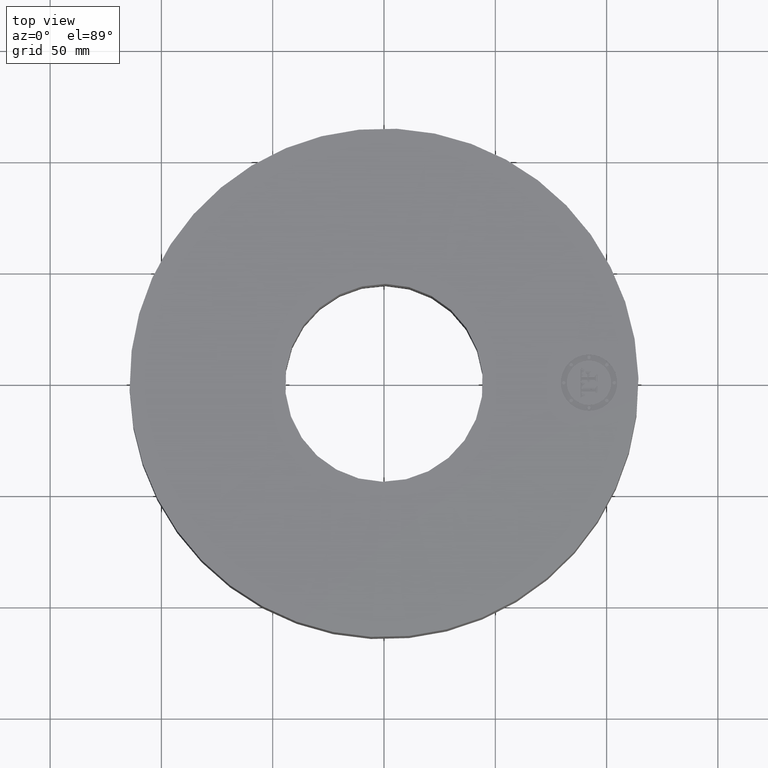
[diagram: clean part render]
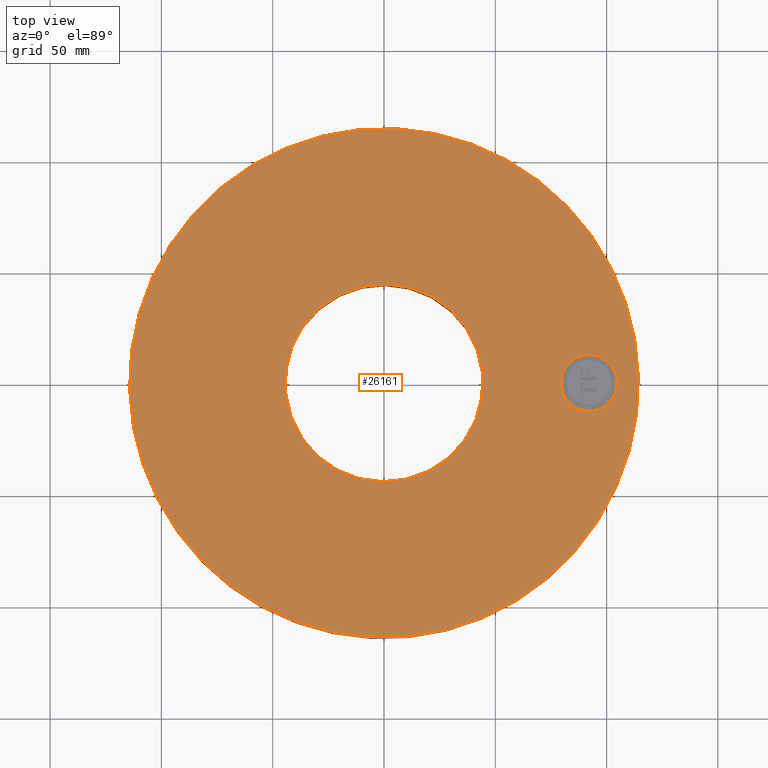
[diagram: same view with one face highlighted and labeled with its STEP entity id]
A machine part, top view. The second image highlights one B-rep face of the part: STEP entity #26161.
In plain terms, the highlighted planar face has unit normal (0, 0, -1).
Its self-contained STEP definition (entity closure, byte-faithful):
#3454=AXIS2_PLACEMENT_3D('Circle Axis2P3D',#3452,#3453,$) ;
#3473=AXIS2_PLACEMENT_3D('Circle Axis2P3D',#3471,#3472,$) ;
#4555=AXIS2_PLACEMENT_3D('Circle Axis2P3D',#4553,#4554,$) ;
#4581=AXIS2_PLACEMENT_3D('Circle Axis2P3D',#4579,#4580,$) ;
#26133=AXIS2_PLACEMENT_3D('Plane Axis2P3D',#26130,#26131,#26132) ;
#26145=AXIS2_PLACEMENT_3D('Circle Axis2P3D',#26143,#26144,$) ;
#26154=AXIS2_PLACEMENT_3D('Circle Axis2P3D',#26152,#26153,$) ;
#3449=CARTESIAN_POINT('Vertex',(-2.15741492373,-3.94912152852,2.12000000001)) ;
#3452=CARTESIAN_POINT('Axis2P3D Location',(0.,0.,2.12000000001)) ;
#3456=CARTESIAN_POINT('Vertex',(2.15741492373,3.94912152852,2.12000000001)) ;
#3471=CARTESIAN_POINT('Axis2P3D Location',(0.,0.,2.12000000001)) ;
#4553=CARTESIAN_POINT('Axis2P3D Location',(0.,0.,2.12000000001)) ;
#4557=CARTESIAN_POINT('Vertex',(0.838994692561,1.53576948331,2.12000000001)) ;
#4559=CARTESIAN_POINT('Vertex',(-0.838994692561,-1.53576948331,2.12000000001)) ;
#4579=CARTESIAN_POINT('Axis2P3D Location',(0.,0.,2.12000000001)) ;
#26130=CARTESIAN_POINT('Axis2P3D Location',(0.,1.75000000001,2.12000000001)) ;
#26143=CARTESIAN_POINT('Axis2P3D Location',(3.62500000001,0.,2.12000000001)) ;
#26147=CARTESIAN_POINT('Vertex',(3.62500000001,-0.499999995002,2.12000000001)) ;
#26149=CARTESIAN_POINT('Vertex',(3.62500000001,0.499999995002,2.12000000001)) ;
#26152=CARTESIAN_POINT('Axis2P3D Location',(3.62500000001,0.,2.12000000001)) ;
#3453=DIRECTION('Axis2P3D Direction',(0.,0.,-0.0393700787402)) ;
#3472=DIRECTION('Axis2P3D Direction',(0.,0.,-0.0393700787402)) ;
#4554=DIRECTION('Axis2P3D Direction',(0.,0.,-0.0393700787402)) ;
#4580=DIRECTION('Axis2P3D Direction',(0.,0.,-0.0393700787402)) ;
#26131=DIRECTION('Axis2P3D Direction',(0.,0.,-0.0393700787402)) ;
#26132=DIRECTION('Axis2P3D XDirection',(0.0393700787402,0.,0.)) ;
#26144=DIRECTION('Axis2P3D Direction',(0.,0.,-0.0393700787402)) ;
#26153=DIRECTION('Axis2P3D Direction',(0.,0.,-0.0393700787402)) ;
#26136=ORIENTED_EDGE('',*,*,#3475,.F.) ;
#26137=ORIENTED_EDGE('',*,*,#3458,.F.) ;
#26140=ORIENTED_EDGE('',*,*,#4583,.T.) ;
#26141=ORIENTED_EDGE('',*,*,#4561,.T.) ;
#26158=ORIENTED_EDGE('',*,*,#26151,.F.) ;
#26159=ORIENTED_EDGE('',*,*,#26156,.F.) ;
#26142=FACE_BOUND('',#26139,.T.) ;
#26160=FACE_BOUND('',#26157,.T.) ;
#26161=ADVANCED_FACE('PartBody',(#26138,#26142,#26160),#26134,.F.) ;
#3455=CIRCLE('generated circle',#3454,4.50000000002) ;
#3474=CIRCLE('generated circle',#3473,4.50000000002) ;
#4556=CIRCLE('generated circle',#4555,1.75000000001) ;
#4582=CIRCLE('generated circle',#4581,1.75000000001) ;
#26146=CIRCLE('generated circle',#26145,0.499999995002) ;
#26155=CIRCLE('generated circle',#26154,0.499999995002) ;
#3458=EDGE_CURVE('',#3450,#3457,#3455,.T.) ;
#3475=EDGE_CURVE('',#3457,#3450,#3474,.T.) ;
#4561=EDGE_CURVE('',#4558,#4560,#4556,.T.) ;
#4583=EDGE_CURVE('',#4560,#4558,#4582,.T.) ;
#26151=EDGE_CURVE('',#26148,#26150,#26146,.F.) ;
#26156=EDGE_CURVE('',#26150,#26148,#26155,.F.) ;
#26135=EDGE_LOOP('',(#26136,#26137)) ;
#26139=EDGE_LOOP('',(#26140,#26141)) ;
#26157=EDGE_LOOP('',(#26158,#26159)) ;
#26138=FACE_OUTER_BOUND('',#26135,.T.) ;
#26134=PLANE('',#26133) ;
#3450=VERTEX_POINT('',#3449) ;
#3457=VERTEX_POINT('',#3456) ;
#4558=VERTEX_POINT('',#4557) ;
#4560=VERTEX_POINT('',#4559) ;
#26148=VERTEX_POINT('',#26147) ;
#26150=VERTEX_POINT('',#26149) ;